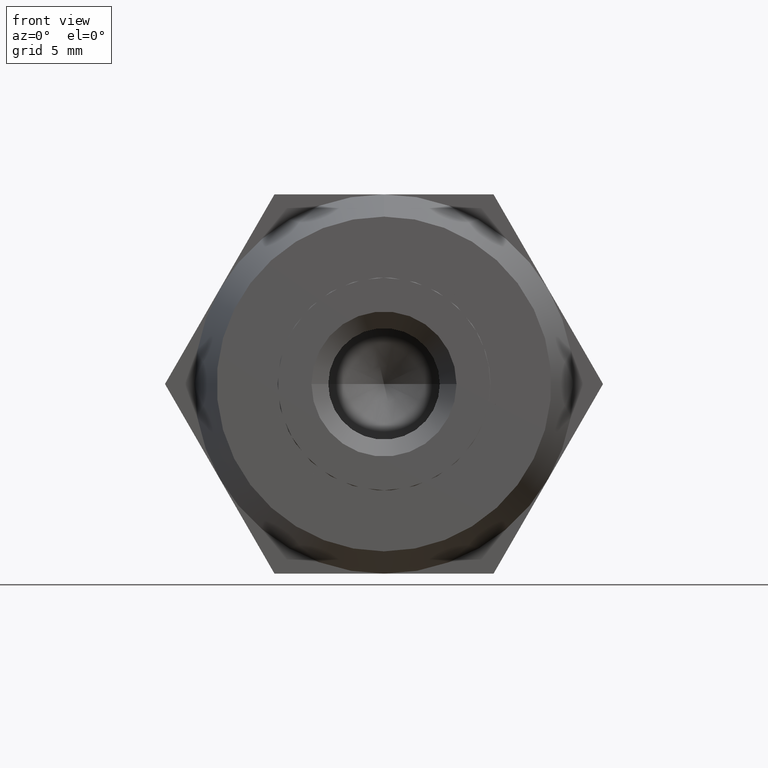
[diagram: clean part render]
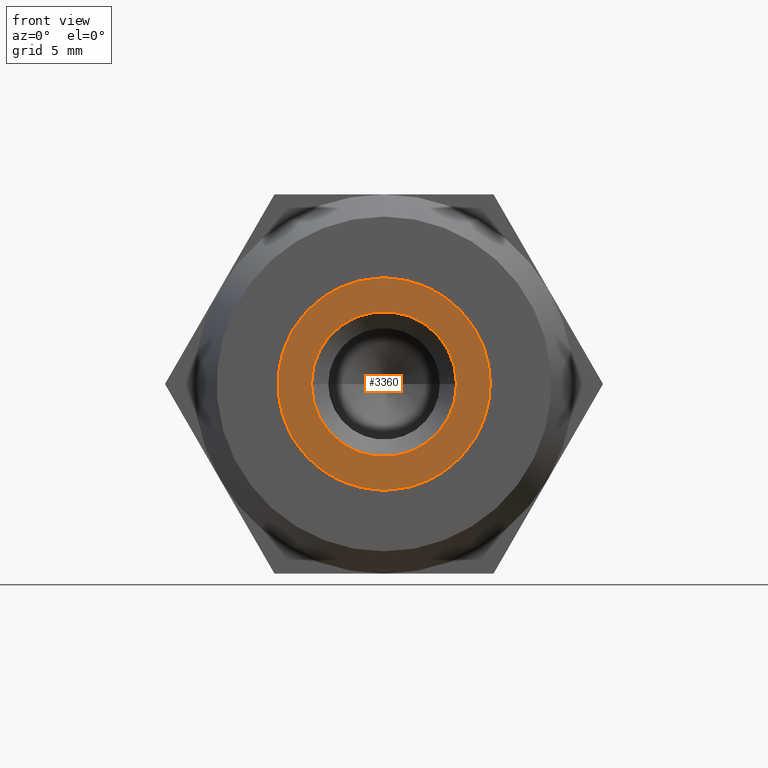
[diagram: same view with one face highlighted and labeled with its STEP entity id]
A machine part, front view. The second image highlights one B-rep face of the part: STEP entity #3360.
In plain terms, the highlighted planar face has unit normal (-0, -1, -0).
Its self-contained STEP definition (entity closure, byte-faithful):
#39 = ORIENTED_EDGE ( 'NONE', *, *, #1813, .F. ) ;
#81 = DIRECTION ( 'NONE',  ( 0.0000000000000000000, 1.000000000000000000, 0.0000000000000000000 ) ) ;
#112 = CIRCLE ( 'NONE', #651, 4.762500000000000200 ) ;
#272 = ORIENTED_EDGE ( 'NONE', *, *, #2884, .F. ) ;
#276 = EDGE_CURVE ( 'NONE', #3861, #3866, #625, .T. ) ;
#388 = AXIS2_PLACEMENT_3D ( 'NONE', #3524, #3245, #2683 ) ;
#397 = VERTEX_POINT ( 'NONE', #1729 ) ;
#410 = DIRECTION ( 'NONE',  ( -0.0000000000000000000, -1.000000000000000000, -0.0000000000000000000 ) ) ;
#506 = DIRECTION ( 'NONE',  ( 0.0000000000000000000, 0.0000000000000000000, 1.000000000000000000 ) ) ;
#536 = DIRECTION ( 'NONE',  ( -0.0000000000000000000, -1.000000000000000000, -0.0000000000000000000 ) ) ;
#551 = EDGE_CURVE ( 'NONE', #397, #3861, #3046, .T. ) ;
#600 = CARTESIAN_POINT ( 'NONE',  ( 0.0000000000000000000, 6.500000000000000000, 0.0000000000000000000 ) ) ;
#613 = CIRCLE ( 'NONE', #3790, 4.762500000000000200 ) ;
#625 = CIRCLE ( 'NONE', #2347, 4.762500000000000200 ) ;
#629 = DIRECTION ( 'NONE',  ( -0.0000000000000000000, -1.000000000000000000, -0.0000000000000000000 ) ) ;
#636 = CARTESIAN_POINT ( 'NONE',  ( 0.0000000000000000000, 6.500000000000000000, 0.0000000000000000000 ) ) ;
#644 = DIRECTION ( 'NONE',  ( 0.0000000000000000000, 0.0000000000000000000, 1.000000000000000000 ) ) ;
#651 = AXIS2_PLACEMENT_3D ( 'NONE', #1898, #2815, #3662 ) ;
#716 = CARTESIAN_POINT ( 'NONE',  ( 0.0000000000000000000, 6.500000000000000000, 0.0000000000000000000 ) ) ;
#760 = FACE_BOUND ( 'NONE', #914, .T. ) ;
#842 = CARTESIAN_POINT ( 'NONE',  ( -2.381250000000000100, 6.500000000000000000, 4.124445985523419900 ) ) ;
#860 = EDGE_CURVE ( 'NONE', #3866, #2053, #112, .T. ) ;
#861 = DIRECTION ( 'NONE',  ( 0.0000000000000000000, 0.0000000000000000000, 1.000000000000000000 ) ) ;
#905 = CARTESIAN_POINT ( 'NONE',  ( 0.0000000000000000000, 6.500000000000000000, 0.0000000000000000000 ) ) ;
#914 = EDGE_LOOP ( 'NONE', ( #2889, #1724 ) ) ;
#916 = VERTEX_POINT ( 'NONE', #3418 ) ;
#940 = DIRECTION ( 'NONE',  ( 0.0000000000000000000, 0.0000000000000000000, 1.000000000000000000 ) ) ;
#989 = CIRCLE ( 'NONE', #1123, 4.762500000000000200 ) ;
#1122 = DIRECTION ( 'NONE',  ( 0.0000000000000000000, 1.000000000000000000, 0.0000000000000000000 ) ) ;
#1123 = AXIS2_PLACEMENT_3D ( 'NONE', #2312, #536, #1984 ) ;
#1170 = CARTESIAN_POINT ( 'NONE',  ( -4.762500000000000200, 6.500000000000000000, -6.009258394948640100E-015 ) ) ;
#1181 = AXIS2_PLACEMENT_3D ( 'NONE', #2426, #2728, #940 ) ;
#1194 = AXIS2_PLACEMENT_3D ( 'NONE', #716, #410, #2145 ) ;
#1250 = VERTEX_POINT ( 'NONE', #3213 ) ;
#1253 = DIRECTION ( 'NONE',  ( 0.0000000000000000000, 0.0000000000000000000, 1.000000000000000000 ) ) ;
#1328 = CIRCLE ( 'NONE', #388, 3.250000000000000000 ) ;
#1604 = EDGE_CURVE ( 'NONE', #3485, #3054, #2721, .T. ) ;
#1724 = ORIENTED_EDGE ( 'NONE', *, *, #3175, .F. ) ;
#1729 = CARTESIAN_POINT ( 'NONE',  ( 2.381250000000000100, 6.500000000000000000, 4.124445985523399500 ) ) ;
#1791 = PLANE ( 'NONE',  #2249 ) ;
#1813 = EDGE_CURVE ( 'NONE', #1250, #3485, #989, .T. ) ;
#1828 = DIRECTION ( 'NONE',  ( -1.776356839400250500E-015, 0.0000000000000000000, 1.000000000000000000 ) ) ;
#1898 = CARTESIAN_POINT ( 'NONE',  ( 0.0000000000000000000, 6.500000000000000000, 0.0000000000000000000 ) ) ;
#1911 = EDGE_CURVE ( 'NONE', #3697, #916, #1328, .T. ) ;
#1984 = DIRECTION ( 'NONE',  ( 0.0000000000000000000, 0.0000000000000000000, 1.000000000000000000 ) ) ;
#2030 = CARTESIAN_POINT ( 'NONE',  ( 0.0000000000000000000, 6.500000000000000000, 0.0000000000000000000 ) ) ;
#2053 = VERTEX_POINT ( 'NONE', #2441 ) ;
#2056 = AXIS2_PLACEMENT_3D ( 'NONE', #2030, #1122, #861 ) ;
#2070 = AXIS2_PLACEMENT_3D ( 'NONE', #600, #629, #1253 ) ;
#2110 = ORIENTED_EDGE ( 'NONE', *, *, #551, .F. ) ;
#2145 = DIRECTION ( 'NONE',  ( 0.0000000000000000000, 0.0000000000000000000, 1.000000000000000000 ) ) ;
#2151 = CIRCLE ( 'NONE', #2056, 3.250000000000000000 ) ;
#2191 = EDGE_LOOP ( 'NONE', ( #3053, #2110, #3295, #2353, #39, #272, #3578 ) ) ;
#2249 = AXIS2_PLACEMENT_3D ( 'NONE', #905, #81, #644 ) ;
#2250 = CARTESIAN_POINT ( 'NONE',  ( 4.762500000000000200, 6.500000000000000000, 0.0000000000000000000 ) ) ;
#2271 = CARTESIAN_POINT ( 'NONE',  ( 0.0000000000000000000, 6.500000000000000000, 3.250000000000000000 ) ) ;
#2307 = CIRCLE ( 'NONE', #1181, 4.762500000000000200 ) ;
#2312 = CARTESIAN_POINT ( 'NONE',  ( 0.0000000000000000000, 6.500000000000000000, 0.0000000000000000000 ) ) ;
#2347 = AXIS2_PLACEMENT_3D ( 'NONE', #2877, #3491, #506 ) ;
#2353 = ORIENTED_EDGE ( 'NONE', *, *, #1604, .F. ) ;
#2426 = CARTESIAN_POINT ( 'NONE',  ( 0.0000000000000000000, 6.500000000000000000, 0.0000000000000000000 ) ) ;
#2441 = CARTESIAN_POINT ( 'NONE',  ( -2.381250000000029800, 6.500000000000000000, -4.124445985523424300 ) ) ;
#2683 = DIRECTION ( 'NONE',  ( 0.0000000000000000000, 0.0000000000000000000, 1.000000000000000000 ) ) ;
#2721 = CIRCLE ( 'NONE', #1194, 4.762500000000000200 ) ;
#2728 = DIRECTION ( 'NONE',  ( -0.0000000000000000000, -1.000000000000000000, -0.0000000000000000000 ) ) ;
#2815 = DIRECTION ( 'NONE',  ( -0.0000000000000000000, -1.000000000000000000, -0.0000000000000000000 ) ) ;
#2877 = CARTESIAN_POINT ( 'NONE',  ( 0.0000000000000000000, 6.500000000000000000, 0.0000000000000000000 ) ) ;
#2884 = EDGE_CURVE ( 'NONE', #2053, #1250, #2307, .T. ) ;
#2889 = ORIENTED_EDGE ( 'NONE', *, *, #1911, .F. ) ;
#3046 = CIRCLE ( 'NONE', #2070, 4.762500000000000200 ) ;
#3053 = ORIENTED_EDGE ( 'NONE', *, *, #276, .F. ) ;
#3054 = VERTEX_POINT ( 'NONE', #2250 ) ;
#3057 = DIRECTION ( 'NONE',  ( -0.0000000000000000000, -1.000000000000000000, -0.0000000000000000000 ) ) ;
#3099 = CARTESIAN_POINT ( 'NONE',  ( 2.381250000000025400, 6.500000000000000000, -4.124445985523429700 ) ) ;
#3175 = EDGE_CURVE ( 'NONE', #916, #3697, #2151, .T. ) ;
#3213 = CARTESIAN_POINT ( 'NONE',  ( 0.0000000000000000000, 6.500000000000000000, -4.762500000000000200 ) ) ;
#3245 = DIRECTION ( 'NONE',  ( 0.0000000000000000000, 1.000000000000000000, 0.0000000000000000000 ) ) ;
#3295 = ORIENTED_EDGE ( 'NONE', *, *, #3410, .F. ) ;
#3360 = ADVANCED_FACE ( 'NONE', ( #3411, #760 ), #1791, .T. ) ;
#3410 = EDGE_CURVE ( 'NONE', #3054, #397, #613, .T. ) ;
#3411 = FACE_OUTER_BOUND ( 'NONE', #2191, .T. ) ;
#3418 = CARTESIAN_POINT ( 'NONE',  ( 3.980102097228897700E-016, 6.500000000000000000, -3.250000000000000000 ) ) ;
#3485 = VERTEX_POINT ( 'NONE', #3099 ) ;
#3491 = DIRECTION ( 'NONE',  ( -0.0000000000000000000, -1.000000000000000000, -0.0000000000000000000 ) ) ;
#3524 = CARTESIAN_POINT ( 'NONE',  ( 0.0000000000000000000, 6.500000000000000000, 0.0000000000000000000 ) ) ;
#3578 = ORIENTED_EDGE ( 'NONE', *, *, #860, .F. ) ;
#3662 = DIRECTION ( 'NONE',  ( 8.881784197001252300E-016, 0.0000000000000000000, 1.000000000000000000 ) ) ;
#3697 = VERTEX_POINT ( 'NONE', #2271 ) ;
#3790 = AXIS2_PLACEMENT_3D ( 'NONE', #636, #3057, #1828 ) ;
#3861 = VERTEX_POINT ( 'NONE', #842 ) ;
#3866 = VERTEX_POINT ( 'NONE', #1170 ) ;